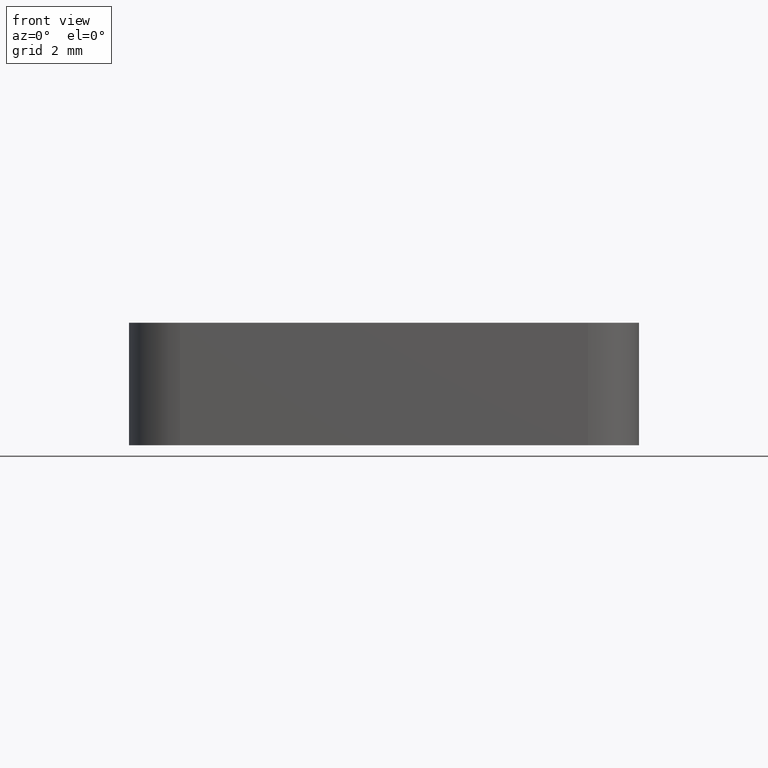
[diagram: clean part render]
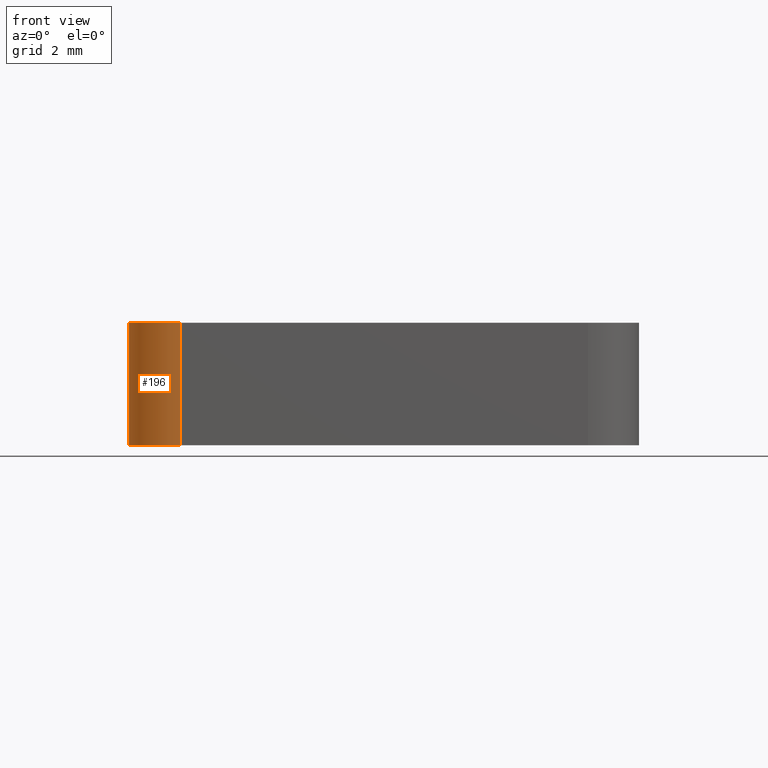
[diagram: same view with one face highlighted and labeled with its STEP entity id]
A machine part, front view. The second image highlights one B-rep face of the part: STEP entity #196.
In plain terms, the highlighted cylindrical surface (partial cylindrical patch) has radius 1 mm, axis along (0, 0, 1).
Its self-contained STEP definition (entity closure, byte-faithful):
#24=FACE_OUTER_BOUND('',#35,.T.);
#35=EDGE_LOOP('',(#140,#141,#142,#143));
#48=LINE('',#321,#65);
#49=LINE('',#325,#66);
#65=VECTOR('',#261,2.4);
#66=VECTOR('',#264,2.4);
#83=CIRCLE('',#233,1.);
#84=CIRCLE('',#234,1.);
#93=VERTEX_POINT('',#319);
#94=VERTEX_POINT('',#320);
#95=VERTEX_POINT('',#322);
#96=VERTEX_POINT('',#324);
#112=EDGE_CURVE('',#93,#94,#48,.T.);
#113=EDGE_CURVE('',#94,#95,#83,.T.);
#114=EDGE_CURVE('',#96,#95,#49,.T.);
#115=EDGE_CURVE('',#93,#96,#84,.T.);
#140=ORIENTED_EDGE('',*,*,#112,.T.);
#141=ORIENTED_EDGE('',*,*,#113,.T.);
#142=ORIENTED_EDGE('',*,*,#114,.F.);
#143=ORIENTED_EDGE('',*,*,#115,.F.);
#191=CYLINDRICAL_SURFACE('',#232,1.);
#196=ADVANCED_FACE('',(#24),#191,.T.);
#232=AXIS2_PLACEMENT_3D('',#318,#259,#260);
#233=AXIS2_PLACEMENT_3D('',#323,#262,#263);
#234=AXIS2_PLACEMENT_3D('',#326,#265,#266);
#259=DIRECTION('center_axis',(0.,0.,1.));
#260=DIRECTION('ref_axis',(1.,0.,0.));
#261=DIRECTION('',(0.,0.,-1.));
#262=DIRECTION('center_axis',(0.,0.,1.));
#263=DIRECTION('ref_axis',(1.,0.,0.));
#264=DIRECTION('',(0.,0.,-1.));
#265=DIRECTION('center_axis',(0.,0.,1.));
#266=DIRECTION('ref_axis',(1.,0.,0.));
#318=CARTESIAN_POINT('Origin',(-4.,-4.,0.));
#319=CARTESIAN_POINT('',(-5.,-4.,0.));
#320=CARTESIAN_POINT('',(-5.,-4.,-2.4));
#321=CARTESIAN_POINT('',(-5.,-4.,0.));
#322=CARTESIAN_POINT('',(-4.,-5.,-2.4));
#323=CARTESIAN_POINT('Origin',(-4.,-4.,-2.4));
#324=CARTESIAN_POINT('',(-4.,-5.,0.));
#325=CARTESIAN_POINT('',(-4.,-5.,0.));
#326=CARTESIAN_POINT('Origin',(-4.,-4.,0.));